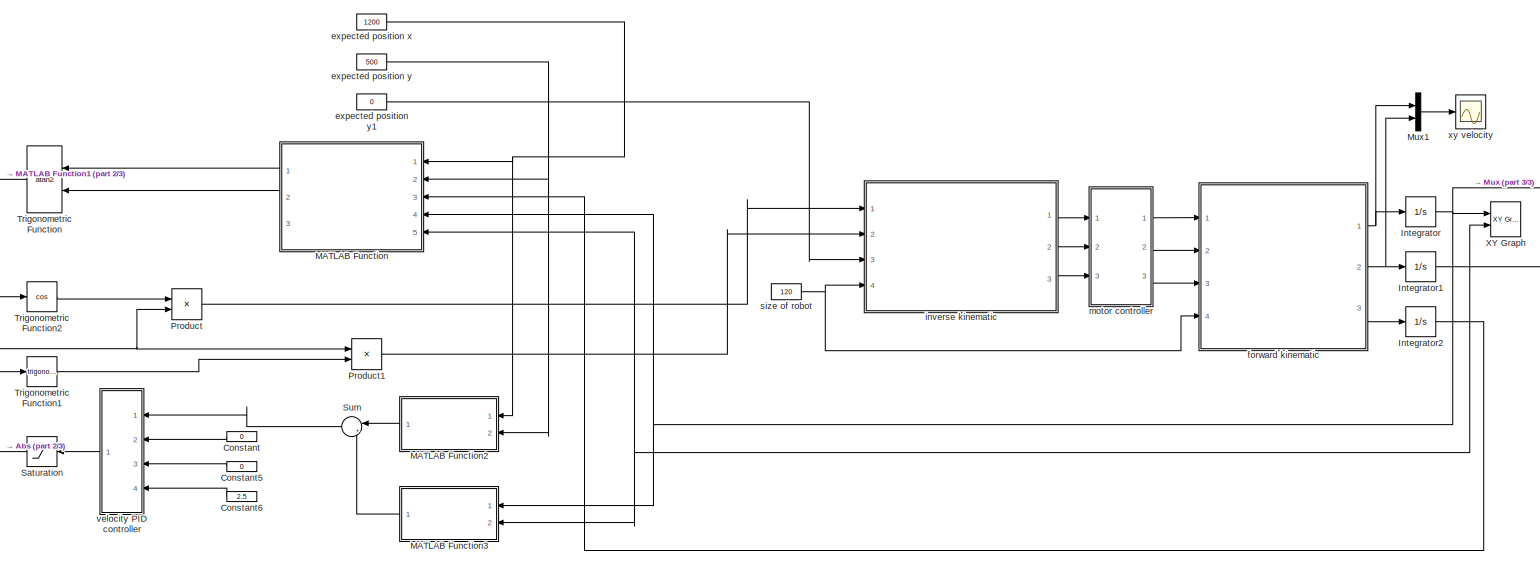
[diagram: root canvas - part 1/3, most of the canvas]
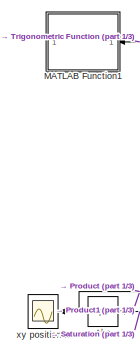
[diagram: root canvas - part 2/3, middle left region]
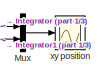
[diagram: root canvas - part 3/3, middle right region]
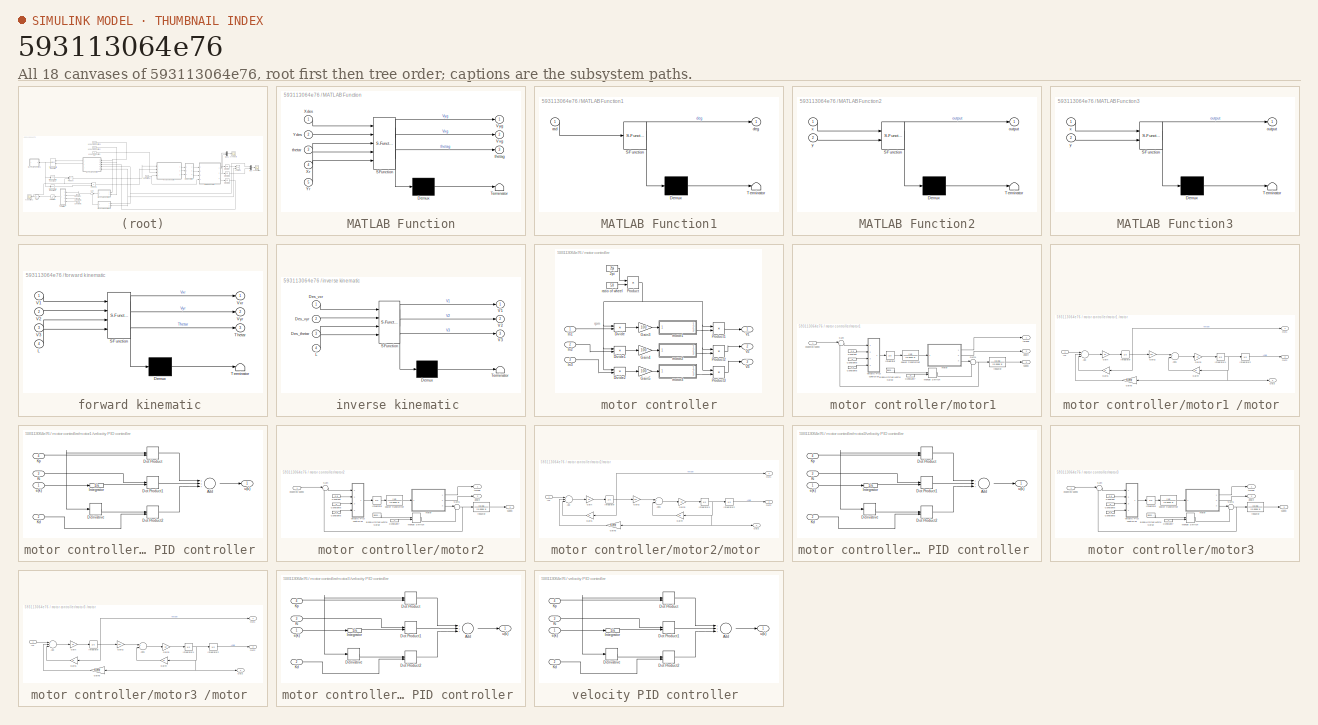
[diagram: thumbnail index - all 18 canvases of the model, root first then tree order]
MODEL slx_593113064e76
KIND model
CONFIG AbsTol = auto
CONFIG FixedStep = auto
CONFIG MaxStep = auto
CONFIG MinStep = auto
CONFIG RelTol = 1e-3
CONFIG SampleTimeConstraint = Unconstrained
CONFIG Solver = VariableStepAuto
CONFIG SolverMode = Auto
CONFIG SolverName = VariableStepAuto
CONFIG StartTime = 0.0
CONFIG StopTime = 10.0
BLOCK [Abs] Abs
  SaturateOnIntegerOverflow = off
BLOCK [Constant] Constant
  Value = 0
BLOCK [Constant] Constant5
  Value = 0
BLOCK [Constant] Constant6
  Value = 2.5
BLOCK [Integrator] Integrator
  Ports = [1, 1]
BLOCK [Integrator] Integrator1
  Ports = [1, 1]
BLOCK [Integrator] Integrator2
  Ports = [1, 1]
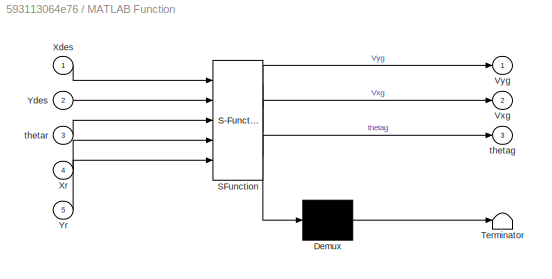
BLOCK [SubSystem] MATLAB Function
  ErrorFcn = Stateflow.Translate.translate
  PermitHierarchicalResolution = ExplicitOnly
  Ports = [5, 3]
  RequestExecContextInheritance = off
  SFBlockType = MATLAB Function
  TreatAsAtomicUnit = on
  Variant = off
BLOCK [Demux] MATLAB Function/ Demux 
  Outputs = 1
  Ports = [1, 1]
BLOCK [S-Function] MATLAB Function/ SFunction 
  EnableBusSupport = on
  FunctionName = sf_sfun
  PortCounts = [5 4]
  Ports = [5, 4]
  SFunctionDeploymentMode = off
  Tag = Stateflow S-Function robot2_position_mode 3
BLOCK [Terminator] MATLAB Function/ Terminator 
BLOCK [Outport] MATLAB Function/Vxg
  IconDisplay = Port number
  Port = 2
BLOCK [Outport] MATLAB Function/Vyg
  IconDisplay = Port number
BLOCK [Inport] MATLAB Function/Xdes
  IconDisplay = Port number
BLOCK [Inport] MATLAB Function/Xr
  IconDisplay = Port number
  Port = 4
BLOCK [Inport] MATLAB Function/Ydes
  IconDisplay = Port number
  Port = 2
BLOCK [Inport] MATLAB Function/Yr
  IconDisplay = Port number
  Port = 5
BLOCK [Outport] MATLAB Function/thetag
  IconDisplay = Port number
  Port = 3
BLOCK [Inport] MATLAB Function/thetar
  IconDisplay = Port number
  Port = 3
BLOCK [SubSystem] MATLAB Function1
  ErrorFcn = Stateflow.Translate.translate
  PermitHierarchicalResolution = ExplicitOnly
  Ports = [1, 1]
  RequestExecContextInheritance = off
  SFBlockType = MATLAB Function
  TreatAsAtomicUnit = on
  Variant = off
BLOCK [Demux] MATLAB Function1/ Demux 
  Outputs = 1
  Ports = [1, 1]
BLOCK [S-Function] MATLAB Function1/ SFunction 
  EnableBusSupport = on
  FunctionName = sf_sfun
  PortCounts = [1 2]
  Ports = [1, 2]
  SFunctionDeploymentMode = off
  Tag = Stateflow S-Function robot2_position_mode 4
BLOCK [Terminator] MATLAB Function1/ Terminator 
BLOCK [Outport] MATLAB Function1/deg
  IconDisplay = Port number
BLOCK [Inport] MATLAB Function1/rad
  IconDisplay = Port number
BLOCK [SubSystem] MATLAB Function2
  ErrorFcn = Stateflow.Translate.translate
  PermitHierarchicalResolution = ExplicitOnly
  Ports = [2, 1]
  RequestExecContextInheritance = off
  SFBlockType = MATLAB Function
  TreatAsAtomicUnit = on
  Variant = off
BLOCK [Demux] MATLAB Function2/ Demux 
  Outputs = 1
  Ports = [1, 1]
BLOCK [S-Function] MATLAB Function2/ SFunction 
  EnableBusSupport = on
  FunctionName = sf_sfun
  PortCounts = [2 2]
  Ports = [2, 2]
  SFunctionDeploymentMode = off
  Tag = Stateflow S-Function robot2_position_mode 5
BLOCK [Terminator] MATLAB Function2/ Terminator 
BLOCK [Outport] MATLAB Function2/output
  IconDisplay = Port number
BLOCK [Inport] MATLAB Function2/x
  IconDisplay = Port number
BLOCK [Inport] MATLAB Function2/y
  IconDisplay = Port number
  Port = 2
BLOCK [SubSystem] MATLAB Function3
  ErrorFcn = Stateflow.Translate.translate
  PermitHierarchicalResolution = ExplicitOnly
  Ports = [2, 1]
  RequestExecContextInheritance = off
  SFBlockType = MATLAB Function
  TreatAsAtomicUnit = on
  Variant = off
BLOCK [Demux] MATLAB Function3/ Demux 
  Outputs = 1
  Ports = [1, 1]
BLOCK [S-Function] MATLAB Function3/ SFunction 
  EnableBusSupport = on
  FunctionName = sf_sfun
  PortCounts = [2 2]
  Ports = [2, 2]
  SFunctionDeploymentMode = off
  Tag = Stateflow S-Function robot2_position_mode 6
BLOCK [Terminator] MATLAB Function3/ Terminator 
BLOCK [Outport] MATLAB Function3/output
  IconDisplay = Port number
BLOCK [Inport] MATLAB Function3/x
  IconDisplay = Port number
BLOCK [Inport] MATLAB Function3/y
  IconDisplay = Port number
  Port = 2
BLOCK [Mux] Mux
  DisplayOption = bar
  Inputs = 2
  Ports = [2, 1]
BLOCK [Mux] Mux1
  DisplayOption = bar
  Inputs = 2
  Ports = [2, 1]
BLOCK [Product] Product
  InputSameDT = off
  OutDataTypeStr = Inherit: Inherit via internal rule
  Ports = [2, 1]
  RndMeth = Floor
  SaturateOnIntegerOverflow = off
BLOCK [Product] Product1
  InputSameDT = off
  OutDataTypeStr = Inherit: Inherit via internal rule
  Ports = [2, 1]
  RndMeth = Floor
  SaturateOnIntegerOverflow = off
BLOCK [Saturate] Saturation
  InputPortMap = u0
  LowerLimit = -400
  Ports = [1, 1]
  UpperLimit = 400
BLOCK [Sum] Sum
  IconShape = round
  InputSameDT = off
  Inputs = |+-
  OutDataTypeStr = Inherit: Inherit via internal rule
  Ports = [2, 1]
  SaturateOnIntegerOverflow = off
BLOCK [Trigonometry] Trigonometric Function
  Operator = atan2
  Ports = [2, 1]
BLOCK [Trigonometry] Trigonometric Function1
  Ports = [1, 1]
BLOCK [Trigonometry] Trigonometric Function2
  Operator = cos
  Ports = [1, 1]
BLOCK [Reference] XY Graph  REF=simulink/Sinks/XY Graph
  Ports = [2]
  SourceBlock = simulink/Sinks/XY Graph
  SourceType = XY scope.
BLOCK [Constant] expected position x
  Value = 1200
BLOCK [Constant] expected position y
  Value = 500
BLOCK [Constant] expected position y1
  Value = 0
BLOCK [SubSystem] forward kinematic 
  ErrorFcn = Stateflow.Translate.translate
  PermitHierarchicalResolution = ExplicitOnly
  Ports = [4, 3]
  RequestExecContextInheritance = off
  SFBlockType = MATLAB Function
  TreatAsAtomicUnit = on
  Variant = off
BLOCK [Demux] forward kinematic / Demux 
  Outputs = 1
  Ports = [1, 1]
BLOCK [S-Function] forward kinematic / SFunction 
  EnableBusSupport = on
  FunctionName = sf_sfun
  PortCounts = [4 4]
  Ports = [4, 4]
  SFunctionDeploymentMode = off
  Tag = Stateflow S-Function robot2_position_mode 2
BLOCK [Terminator] forward kinematic / Terminator 
BLOCK [Inport] forward kinematic /L
  IconDisplay = Port number
  Port = 4
BLOCK [Outport] forward kinematic /Thetar
  IconDisplay = Port number
  Port = 3
BLOCK [Inport] forward kinematic /V1
  IconDisplay = Port number
BLOCK [Inport] forward kinematic /V2
  IconDisplay = Port number
  Port = 2
BLOCK [Inport] forward kinematic /V3
  IconDisplay = Port number
  Port = 3
BLOCK [Outport] forward kinematic /Vxr
  IconDisplay = Port number
BLOCK [Outport] forward kinematic /Vyr
  IconDisplay = Port number
  Port = 2
BLOCK [SubSystem] inverse kinematic 
  ErrorFcn = Stateflow.Translate.translate
  PermitHierarchicalResolution = ExplicitOnly
  Ports = [4, 3]
  RequestExecContextInheritance = off
  SFBlockType = MATLAB Function
  TreatAsAtomicUnit = on
  Variant = off
BLOCK [Demux] inverse kinematic / Demux 
  Outputs = 1
  Ports = [1, 1]
BLOCK [S-Function] inverse kinematic / SFunction 
  EnableBusSupport = on
  FunctionName = sf_sfun
  PortCounts = [4 4]
  Ports = [4, 4]
  SFunctionDeploymentMode = off
  Tag = Stateflow S-Function robot2_position_mode 1
BLOCK [Terminator] inverse kinematic / Terminator 
BLOCK [Inport] inverse kinematic /Des_thetar
  IconDisplay = Port number
  Port = 3
BLOCK [Inport] inverse kinematic /Des_vxr
  IconDisplay = Port number
BLOCK [Inport] inverse kinematic /Des_vyr
  IconDisplay = Port number
  Port = 2
BLOCK [Inport] inverse kinematic /L
  IconDisplay = Port number
  Port = 4
BLOCK [Outport] inverse kinematic /V1
  IconDisplay = Port number
BLOCK [Outport] inverse kinematic /V2
  IconDisplay = Port number
  Port = 2
BLOCK [Outport] inverse kinematic /V3
  IconDisplay = Port number
  Port = 3
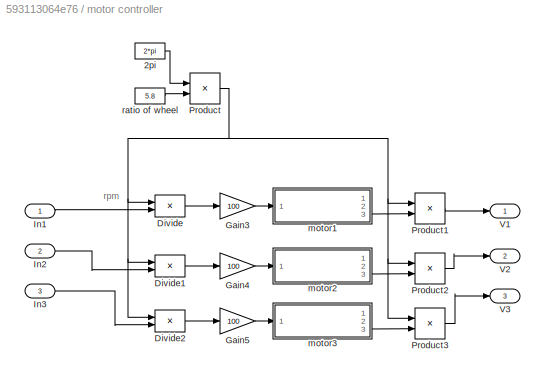
BLOCK [SubSystem] motor controller
  Ports = [3, 3]
  RequestExecContextInheritance = off
  Variant = off
BLOCK [Constant] motor controller/2pi
  Value = 2*pi
BLOCK [Product] motor controller/Divide
  InputSameDT = off
  Inputs = /*
  OutDataTypeStr = Inherit: Inherit via internal rule
  Ports = [2, 1]
  RndMeth = Floor
  SaturateOnIntegerOverflow = off
BLOCK [Product] motor controller/Divide1
  InputSameDT = off
  Inputs = /*
  OutDataTypeStr = Inherit: Inherit via internal rule
  Ports = [2, 1]
  RndMeth = Floor
  SaturateOnIntegerOverflow = off
BLOCK [Product] motor controller/Divide2
  InputSameDT = off
  Inputs = /*
  OutDataTypeStr = Inherit: Inherit via internal rule
  Ports = [2, 1]
  RndMeth = Floor
  SaturateOnIntegerOverflow = off
BLOCK [Gain] motor controller/Gain3
  Gain = 100
  OutDataTypeStr = Inherit: Inherit via internal rule
  ParamDataTypeStr = Inherit: Inherit via internal rule
  SaturateOnIntegerOverflow = off
BLOCK [Gain] motor controller/Gain4
  Gain = 100
  OutDataTypeStr = Inherit: Inherit via internal rule
  ParamDataTypeStr = Inherit: Inherit via internal rule
  SaturateOnIntegerOverflow = off
BLOCK [Gain] motor controller/Gain5
  Gain = 100
  OutDataTypeStr = Inherit: Inherit via internal rule
  ParamDataTypeStr = Inherit: Inherit via internal rule
  SaturateOnIntegerOverflow = off
BLOCK [Inport] motor controller/In1
  IconDisplay = Port number
BLOCK [Inport] motor controller/In2
  IconDisplay = Port number
  Port = 2
BLOCK [Inport] motor controller/In3
  IconDisplay = Port number
  Port = 3
BLOCK [Product] motor controller/Product
  InputSameDT = off
  OutDataTypeStr = Inherit: Inherit via internal rule
  Ports = [2, 1]
  RndMeth = Floor
  SaturateOnIntegerOverflow = off
BLOCK [Product] motor controller/Product1
  InputSameDT = off
  OutDataTypeStr = Inherit: Inherit via internal rule
  Ports = [2, 1]
  RndMeth = Floor
  SaturateOnIntegerOverflow = off
BLOCK [Product] motor controller/Product2
  InputSameDT = off
  OutDataTypeStr = Inherit: Inherit via internal rule
  Ports = [2, 1]
  RndMeth = Floor
  SaturateOnIntegerOverflow = off
BLOCK [Product] motor controller/Product3
  InputSameDT = off
  OutDataTypeStr = Inherit: Inherit via internal rule
  Ports = [2, 1]
  RndMeth = Floor
  SaturateOnIntegerOverflow = off
BLOCK [Outport] motor controller/V1
  IconDisplay = Port number
BLOCK [Outport] motor controller/V2
  IconDisplay = Port number
  Port = 2
BLOCK [Outport] motor controller/V3
  IconDisplay = Port number
  Port = 3
BLOCK [SubSystem] motor controller/motor1 
  Ports = [1, 3]
  RequestExecContextInheritance = off
  Variant = off
BLOCK [Reference] motor controller/motor1 /Band-Limited White Noise  REF=simulink/Sources/Band-Limited
White Noise
  Ports = [0, 1]
  SourceBlock = simulink/Sources/Band-Limited\nWhite Noise
  SourceType = Band-Limited White Noise.
BLOCK [Constant] motor controller/motor1 /Constant
  Value = 0.8
BLOCK [Constant] motor controller/motor1 /Constant5
  Value = 0
BLOCK [Constant] motor controller/motor1 /Constant6
  Value = 4.5
BLOCK [Constant] motor controller/motor1 /Constant7
  Value = 0
BLOCK [Integrator] motor controller/motor1 /Integrator
  Ports = [1, 1]
BLOCK [ManualSwitch] motor controller/motor1 /Manual Switch
  CurrentSetting = 0
BLOCK [Sum] motor controller/motor1 /Sum
  IconShape = round
  InputSameDT = off
  Inputs = |+-
  OutDataTypeStr = Inherit: Inherit via internal rule
  Ports = [2, 1]
  SaturateOnIntegerOverflow = off
BLOCK [Sum] motor controller/motor1 /Sum1
  IconShape = round
  InputSameDT = off
  Inputs = |++
  OutDataTypeStr = Inherit: Inherit via internal rule
  Ports = [2, 1]
  SaturateOnIntegerOverflow = off
BLOCK [Outport] motor controller/motor1 /angle 
  IconDisplay = Port number
  Port = 2
BLOCK [Inport] motor controller/motor1 /expected speed 
  IconDisplay = Port number
BLOCK [SubSystem] motor controller/motor1 /motor 
  Ports = [1, 3]
  RequestExecContextInheritance = off
  Variant = off
BLOCK [Sum] motor controller/motor1 /motor /Add
  InputSameDT = off
  Inputs = +--
  OutDataTypeStr = Inherit: Inherit via internal rule
  Ports = [3, 1]
  SaturateOnIntegerOverflow = off
BLOCK [Sum] motor controller/motor1 /motor /Add1
  InputSameDT = off
  Inputs = +-
  OutDataTypeStr = Inherit: Inherit via internal rule
  Ports = [2, 1]
  SaturateOnIntegerOverflow = off
BLOCK [Gain] motor controller/motor1 /motor /Gain
  Gain = 1/L
  OutDataTypeStr = Inherit: Inherit via internal rule
  ParamDataTypeStr = Inherit: Inherit via internal rule
  SaturateOnIntegerOverflow = off
BLOCK [Gain] motor controller/motor1 /motor /Gain1
  Gain = R
  OutDataTypeStr = Inherit: Inherit via internal rule
  ParamDataTypeStr = Inherit: Inherit via internal rule
  SaturateOnIntegerOverflow = off
BLOCK [Gain] motor controller/motor1 /motor /Gain2
  Gain = Km
  OutDataTypeStr = Inherit: Inherit via internal rule
  ParamDataTypeStr = Inherit: Inherit via internal rule
  SaturateOnIntegerOverflow = off
BLOCK [Gain] motor controller/motor1 /motor /Gain3
  Gain = 1/J
  OutDataTypeStr = Inherit: Inherit via internal rule
  ParamDataTypeStr = Inherit: Inherit via internal rule
  SaturateOnIntegerOverflow = off
BLOCK [Gain] motor controller/motor1 /motor /Gain4
  Gain = Kf
  OutDataTypeStr = Inherit: Inherit via internal rule
  ParamDataTypeStr = Inherit: Inherit via internal rule
  SaturateOnIntegerOverflow = off
BLOCK [Gain] motor controller/motor1 /motor /Gain5
  Gain = Kemf
  OutDataTypeStr = Inherit: Inherit via internal rule
  ParamDataTypeStr = Inherit: Inherit via internal rule
  SaturateOnIntegerOverflow = off
BLOCK [Inport] motor controller/motor1 /motor /In1
  IconDisplay = Port number
BLOCK [Integrator] motor controller/motor1 /motor /Integrator
  Ports = [1, 1]
BLOCK [Integrator] motor controller/motor1 /motor /Integrator1
  Ports = [1, 1]
BLOCK [Integrator] motor controller/motor1 /motor /Integrator2
  Ports = [1, 1]
BLOCK [Outport] motor controller/motor1 /motor /Out1
  IconDisplay = Port number
BLOCK [Outport] motor controller/motor1 /motor /Out2
  IconDisplay = Port number
  Port = 2
BLOCK [Outport] motor controller/motor1 /motor /Out3
  IconDisplay = Port number
  Port = 3
BLOCK [TransferFcn] motor controller/motor1 /power transformer
  Denominator = [0.0015 1]
  Numerator = [12]
BLOCK [TransferFcn] motor controller/motor1 /reductor
  Denominator = [0.0008 1]
  Numerator = [0.01]
BLOCK [Outport] motor controller/motor1 /speed 
  IconDisplay = Port number
  Port = 3
BLOCK [Outport] motor controller/motor1 /torque
  IconDisplay = Port number
BLOCK [SubSystem] motor controller/motor1 /velocity PID controller 
  Ports = [4, 1]
  RequestExecContextInheritance = off
  Variant = off
BLOCK [Sum] motor controller/motor1 /velocity PID controller /Add
  InputSameDT = off
  Inputs = +++
  OutDataTypeStr = Inherit: Inherit via internal rule
  Ports = [3, 1]
  SaturateOnIntegerOverflow = off
BLOCK [Derivative] motor controller/motor1 /velocity PID controller /Derivative
BLOCK [DotProduct] motor controller/motor1 /velocity PID controller /Dot Product
  OutDataTypeStr = Inherit: Inherit via internal rule
BLOCK [DotProduct] motor controller/motor1 /velocity PID controller /Dot Product1
  OutDataTypeStr = Inherit: Inherit via internal rule
BLOCK [DotProduct] motor controller/motor1 /velocity PID controller /Dot Product2
  OutDataTypeStr = Inherit: Inherit via internal rule
BLOCK [Integrator] motor controller/motor1 /velocity PID controller /Integrator
  Ports = [1, 1]
BLOCK [Inport] motor controller/motor1 /velocity PID controller /Kd 
  IconDisplay = Port number
  Port = 2
BLOCK [Inport] motor controller/motor1 /velocity PID controller /Ki 
  IconDisplay = Port number
  Port = 3
BLOCK [Inport] motor controller/motor1 /velocity PID controller /Kp 
  IconDisplay = Port number
  Port = 4
BLOCK [Inport] motor controller/motor1 /velocity PID controller /e(k)
  IconDisplay = Port number
BLOCK [Outport] motor controller/motor1 /velocity PID controller /u(k)
  IconDisplay = Port number
BLOCK [SubSystem] motor controller/motor2
  Ports = [1, 3]
  RequestExecContextInheritance = off
  Variant = off
BLOCK [Reference] motor controller/motor2/Band-Limited White Noise  REF=simulink/Sources/Band-Limited
White Noise
  Ports = [0, 1]
  SourceBlock = simulink/Sources/Band-Limited\nWhite Noise
  SourceType = Band-Limited White Noise.
BLOCK [Constant] motor controller/motor2/Constant
  Value = 0.8
BLOCK [Constant] motor controller/motor2/Constant5
  Value = 0
BLOCK [Constant] motor controller/motor2/Constant6
  Value = 4.5
BLOCK [Constant] motor controller/motor2/Constant7
  Value = 0
BLOCK [Integrator] motor controller/motor2/Integrator
  Ports = [1, 1]
BLOCK [ManualSwitch] motor controller/motor2/Manual Switch
  CurrentSetting = 0
BLOCK [Sum] motor controller/motor2/Sum
  IconShape = round
  InputSameDT = off
  Inputs = |+-
  OutDataTypeStr = Inherit: Inherit via internal rule
  Ports = [2, 1]
  SaturateOnIntegerOverflow = off
BLOCK [Sum] motor controller/motor2/Sum1
  IconShape = round
  InputSameDT = off
  Inputs = |++
  OutDataTypeStr = Inherit: Inherit via internal rule
  Ports = [2, 1]
  SaturateOnIntegerOverflow = off
BLOCK [Outport] motor controller/motor2/angle 
  IconDisplay = Port number
  Port = 2
BLOCK [Inport] motor controller/motor2/expected speed 
  IconDisplay = Port number
BLOCK [SubSystem] motor controller/motor2/motor 
  Ports = [1, 3]
  RequestExecContextInheritance = off
  Variant = off
BLOCK [Sum] motor controller/motor2/motor /Add
  InputSameDT = off
  Inputs = +--
  OutDataTypeStr = Inherit: Inherit via internal rule
  Ports = [3, 1]
  SaturateOnIntegerOverflow = off
BLOCK [Sum] motor controller/motor2/motor /Add1
  InputSameDT = off
  Inputs = +-
  OutDataTypeStr = Inherit: Inherit via internal rule
  Ports = [2, 1]
  SaturateOnIntegerOverflow = off
BLOCK [Gain] motor controller/motor2/motor /Gain
  Gain = 1/L
  OutDataTypeStr = Inherit: Inherit via internal rule
  ParamDataTypeStr = Inherit: Inherit via internal rule
  SaturateOnIntegerOverflow = off
BLOCK [Gain] motor controller/motor2/motor /Gain1
  Gain = R
  OutDataTypeStr = Inherit: Inherit via internal rule
  ParamDataTypeStr = Inherit: Inherit via internal rule
  SaturateOnIntegerOverflow = off
BLOCK [Gain] motor controller/motor2/motor /Gain2
  Gain = Km
  OutDataTypeStr = Inherit: Inherit via internal rule
  ParamDataTypeStr = Inherit: Inherit via internal rule
  SaturateOnIntegerOverflow = off
BLOCK [Gain] motor controller/motor2/motor /Gain3
  Gain = 1/J
  OutDataTypeStr = Inherit: Inherit via internal rule
  ParamDataTypeStr = Inherit: Inherit via internal rule
  SaturateOnIntegerOverflow = off
BLOCK [Gain] motor controller/motor2/motor /Gain4
  Gain = Kf
  OutDataTypeStr = Inherit: Inherit via internal rule
  ParamDataTypeStr = Inherit: Inherit via internal rule
  SaturateOnIntegerOverflow = off
BLOCK [Gain] motor controller/motor2/motor /Gain5
  Gain = Kemf
  OutDataTypeStr = Inherit: Inherit via internal rule
  ParamDataTypeStr = Inherit: Inherit via internal rule
  SaturateOnIntegerOverflow = off
BLOCK [Inport] motor controller/motor2/motor /In1
  IconDisplay = Port number
BLOCK [Integrator] motor controller/motor2/motor /Integrator
  Ports = [1, 1]
BLOCK [Integrator] motor controller/motor2/motor /Integrator1
  Ports = [1, 1]
BLOCK [Integrator] motor controller/motor2/motor /Integrator2
  Ports = [1, 1]
BLOCK [Outport] motor controller/motor2/motor /Out1
  IconDisplay = Port number
BLOCK [Outport] motor controller/motor2/motor /Out2
  IconDisplay = Port number
  Port = 2
BLOCK [Outport] motor controller/motor2/motor /Out3
  IconDisplay = Port number
  Port = 3
BLOCK [TransferFcn] motor controller/motor2/power transformer
  Denominator = [0.0015 1]
  Numerator = [12]
BLOCK [TransferFcn] motor controller/motor2/reductor
  Denominator = [0.0008 1]
  Numerator = [0.01]
BLOCK [Outport] motor controller/motor2/speed 
  IconDisplay = Port number
  Port = 3
BLOCK [Outport] motor controller/motor2/torque
  IconDisplay = Port number
BLOCK [SubSystem] motor controller/motor2/velocity PID controller 
  Ports = [4, 1]
  RequestExecContextInheritance = off
  Variant = off
BLOCK [Sum] motor controller/motor2/velocity PID controller /Add
  InputSameDT = off
  Inputs = +++
  OutDataTypeStr = Inherit: Inherit via internal rule
  Ports = [3, 1]
  SaturateOnIntegerOverflow = off
BLOCK [Derivative] motor controller/motor2/velocity PID controller /Derivative
BLOCK [DotProduct] motor controller/motor2/velocity PID controller /Dot Product
  OutDataTypeStr = Inherit: Inherit via internal rule
BLOCK [DotProduct] motor controller/motor2/velocity PID controller /Dot Product1
  OutDataTypeStr = Inherit: Inherit via internal rule
BLOCK [DotProduct] motor controller/motor2/velocity PID controller /Dot Product2
  OutDataTypeStr = Inherit: Inherit via internal rule
BLOCK [Integrator] motor controller/motor2/velocity PID controller /Integrator
  Ports = [1, 1]
BLOCK [Inport] motor controller/motor2/velocity PID controller /Kd 
  IconDisplay = Port number
  Port = 2
BLOCK [Inport] motor controller/motor2/velocity PID controller /Ki 
  IconDisplay = Port number
  Port = 3
BLOCK [Inport] motor controller/motor2/velocity PID controller /Kp 
  IconDisplay = Port number
  Port = 4
BLOCK [Inport] motor controller/motor2/velocity PID controller /e(k)
  IconDisplay = Port number
BLOCK [Outport] motor controller/motor2/velocity PID controller /u(k)
  IconDisplay = Port number
BLOCK [SubSystem] motor controller/motor3 
  Ports = [1, 3]
  RequestExecContextInheritance = off
  Variant = off
BLOCK [Reference] motor controller/motor3 /Band-Limited White Noise  REF=simulink/Sources/Band-Limited
White Noise
  Ports = [0, 1]
  SourceBlock = simulink/Sources/Band-Limited\nWhite Noise
  SourceType = Band-Limited White Noise.
BLOCK [Constant] motor controller/motor3 /Constant
  Value = 0.8
BLOCK [Constant] motor controller/motor3 /Constant5
  Value = 0
BLOCK [Constant] motor controller/motor3 /Constant6
  Value = 4.5
BLOCK [Constant] motor controller/motor3 /Constant7
  Value = 0
BLOCK [Integrator] motor controller/motor3 /Integrator
  Ports = [1, 1]
BLOCK [ManualSwitch] motor controller/motor3 /Manual Switch
  CurrentSetting = 0
BLOCK [Sum] motor controller/motor3 /Sum
  IconShape = round
  InputSameDT = off
  Inputs = |+-
  OutDataTypeStr = Inherit: Inherit via internal rule
  Ports = [2, 1]
  SaturateOnIntegerOverflow = off
BLOCK [Sum] motor controller/motor3 /Sum1
  IconShape = round
  InputSameDT = off
  Inputs = |++
  OutDataTypeStr = Inherit: Inherit via internal rule
  Ports = [2, 1]
  SaturateOnIntegerOverflow = off
BLOCK [Outport] motor controller/motor3 /angle 
  IconDisplay = Port number
  Port = 2
BLOCK [Inport] motor controller/motor3 /expected speed 
  IconDisplay = Port number
BLOCK [SubSystem] motor controller/motor3 /motor 
  Ports = [1, 3]
  RequestExecContextInheritance = off
  Variant = off
BLOCK [Sum] motor controller/motor3 /motor /Add
  InputSameDT = off
  Inputs = +--
  OutDataTypeStr = Inherit: Inherit via internal rule
  Ports = [3, 1]
  SaturateOnIntegerOverflow = off
BLOCK [Sum] motor controller/motor3 /motor /Add1
  InputSameDT = off
  Inputs = +-
  OutDataTypeStr = Inherit: Inherit via internal rule
  Ports = [2, 1]
  SaturateOnIntegerOverflow = off
BLOCK [Gain] motor controller/motor3 /motor /Gain
  Gain = 1/L
  OutDataTypeStr = Inherit: Inherit via internal rule
  ParamDataTypeStr = Inherit: Inherit via internal rule
  SaturateOnIntegerOverflow = off
BLOCK [Gain] motor controller/motor3 /motor /Gain1
  Gain = R
  OutDataTypeStr = Inherit: Inherit via internal rule
  ParamDataTypeStr = Inherit: Inherit via internal rule
  SaturateOnIntegerOverflow = off
BLOCK [Gain] motor controller/motor3 /motor /Gain2
  Gain = Km
  OutDataTypeStr = Inherit: Inherit via internal rule
  ParamDataTypeStr = Inherit: Inherit via internal rule
  SaturateOnIntegerOverflow = off
BLOCK [Gain] motor controller/motor3 /motor /Gain3
  Gain = 1/J
  OutDataTypeStr = Inherit: Inherit via internal rule
  ParamDataTypeStr = Inherit: Inherit via internal rule
  SaturateOnIntegerOverflow = off
BLOCK [Gain] motor controller/motor3 /motor /Gain4
  Gain = Kf
  OutDataTypeStr = Inherit: Inherit via internal rule
  ParamDataTypeStr = Inherit: Inherit via internal rule
  SaturateOnIntegerOverflow = off
BLOCK [Gain] motor controller/motor3 /motor /Gain5
  Gain = Kemf
  OutDataTypeStr = Inherit: Inherit via internal rule
  ParamDataTypeStr = Inherit: Inherit via internal rule
  SaturateOnIntegerOverflow = off
BLOCK [Inport] motor controller/motor3 /motor /In1
  IconDisplay = Port number
BLOCK [Integrator] motor controller/motor3 /motor /Integrator
  Ports = [1, 1]
BLOCK [Integrator] motor controller/motor3 /motor /Integrator1
  Ports = [1, 1]
BLOCK [Integrator] motor controller/motor3 /motor /Integrator2
  Ports = [1, 1]
BLOCK [Outport] motor controller/motor3 /motor /Out1
  IconDisplay = Port number
BLOCK [Outport] motor controller/motor3 /motor /Out2
  IconDisplay = Port number
  Port = 2
BLOCK [Outport] motor controller/motor3 /motor /Out3
  IconDisplay = Port number
  Port = 3
BLOCK [TransferFcn] motor controller/motor3 /power transformer
  Denominator = [0.0015 1]
  Numerator = [12]
BLOCK [TransferFcn] motor controller/motor3 /reductor
  Denominator = [0.0008 1]
  Numerator = [0.01]
BLOCK [Outport] motor controller/motor3 /speed 
  IconDisplay = Port number
  Port = 3
BLOCK [Outport] motor controller/motor3 /torque
  IconDisplay = Port number
BLOCK [SubSystem] motor controller/motor3 /velocity PID controller 
  Ports = [4, 1]
  RequestExecContextInheritance = off
  Variant = off
BLOCK [Sum] motor controller/motor3 /velocity PID controller /Add
  InputSameDT = off
  Inputs = +++
  OutDataTypeStr = Inherit: Inherit via internal rule
  Ports = [3, 1]
  SaturateOnIntegerOverflow = off
BLOCK [Derivative] motor controller/motor3 /velocity PID controller /Derivative
BLOCK [DotProduct] motor controller/motor3 /velocity PID controller /Dot Product
  OutDataTypeStr = Inherit: Inherit via internal rule
BLOCK [DotProduct] motor controller/motor3 /velocity PID controller /Dot Product1
  OutDataTypeStr = Inherit: Inherit via internal rule
BLOCK [DotProduct] motor controller/motor3 /velocity PID controller /Dot Product2
  OutDataTypeStr = Inherit: Inherit via internal rule
BLOCK [Integrator] motor controller/motor3 /velocity PID controller /Integrator
  Ports = [1, 1]
BLOCK [Inport] motor controller/motor3 /velocity PID controller /Kd 
  IconDisplay = Port number
  Port = 2
BLOCK [Inport] motor controller/motor3 /velocity PID controller /Ki 
  IconDisplay = Port number
  Port = 3
BLOCK [Inport] motor controller/motor3 /velocity PID controller /Kp 
  IconDisplay = Port number
  Port = 4
BLOCK [Inport] motor controller/motor3 /velocity PID controller /e(k)
  IconDisplay = Port number
BLOCK [Outport] motor controller/motor3 /velocity PID controller /u(k)
  IconDisplay = Port number
BLOCK [Constant] motor controller/ratio of wheel
  Value = 5.8
BLOCK [Constant] size of robot 
  Value = 120
BLOCK [SubSystem] velocity PID controller 
  Ports = [4, 1]
  RequestExecContextInheritance = off
  Variant = off
BLOCK [Sum] velocity PID controller /Add
  InputSameDT = off
  Inputs = +++
  OutDataTypeStr = Inherit: Inherit via internal rule
  Ports = [3, 1]
  SaturateOnIntegerOverflow = off
BLOCK [Derivative] velocity PID controller /Derivative
BLOCK [DotProduct] velocity PID controller /Dot Product
  OutDataTypeStr = Inherit: Inherit via internal rule
BLOCK [DotProduct] velocity PID controller /Dot Product1
  OutDataTypeStr = Inherit: Inherit via internal rule
BLOCK [DotProduct] velocity PID controller /Dot Product2
  OutDataTypeStr = Inherit: Inherit via internal rule
BLOCK [Integrator] velocity PID controller /Integrator
  Ports = [1, 1]
BLOCK [Inport] velocity PID controller /Kd 
  IconDisplay = Port number
  Port = 2
BLOCK [Inport] velocity PID controller /Ki 
  IconDisplay = Port number
  Port = 3
BLOCK [Inport] velocity PID controller /Kp 
  IconDisplay = Port number
  Port = 4
BLOCK [Inport] velocity PID controller /e(k)
  IconDisplay = Port number
BLOCK [Outport] velocity PID controller /u(k)
  IconDisplay = Port number
BLOCK [Scope] xy position 
  Ports = [1]
  ScopeSpecificationString = Simulink.scopes.TimeScopeBlockCfg('CurrentConfiguration', extmgr.ConfigurationSet(extmgr.Configuration('Core','General UI',true),extmgr.Configuration('Core','Source UI',true),extmgr.Configuration('Sources','WiredSimulink',true,'DataLoggingVariableName','ScopeData1'),extmgr.Configuration('Visuals','Time Domain',true,'SerializedDisplays',{struct('MinYLimReal','-150.00001','MaxYLimReal','1350.00005',...<+1479ch>
BLOCK [Scope] xy position 2
  Ports = [1]
  ScopeSpecificationString = Simulink.scopes.TimeScopeBlockCfg('CurrentConfiguration', extmgr.ConfigurationSet(extmgr.Configuration('Core','General UI',true),extmgr.Configuration('Core','Source UI',true),extmgr.Configuration('Sources','WiredSimulink',true,'DataLoggingVariableName','ScopeData3'),extmgr.Configuration('Visuals','Time Domain',true,'SerializedDisplays',{struct('MinYLimReal','-49.89128','MaxYLimReal','449.98792','Y...<+1496ch>
BLOCK [Scope] xy velocity 
  Ports = [1]
  ScopeSpecificationString = Simulink.scopes.TimeScopeBlockCfg('CurrentConfiguration', extmgr.ConfigurationSet(extmgr.Configuration('Core','General UI',true),extmgr.Configuration('Core','Source UI',true),extmgr.Configuration('Sources','WiredSimulink',true),extmgr.Configuration('Visuals','Time Domain',true,'SerializedDisplays',{struct('MinYLimReal','-48.44815','MaxYLimReal','434.94853','YLabelReal','','MinYLimMag','0.00000','M...<+1459ch>
ANNOTATION motor controller: rpm
NET Abs:1 -> Product1:1, Product:2, xy position 2:1
LINE Constant5:1 -> velocity PID controller :3
LINE Constant6:1 -> velocity PID controller :4
LINE Constant:1 -> velocity PID controller :2
NET Integrator1:1 -> MATLAB Function3:2, MATLAB Function:5, Mux:2, XY Graph:2
LINE Integrator2:1 -> MATLAB Function:3
NET Integrator:1 -> MATLAB Function3:1, MATLAB Function:4, Mux:1, XY Graph:1
LINE MATLAB Function2:1 -> Sum:1
LINE MATLAB Function3:1 -> Sum:2
LINE MATLAB Function:1 -> Trigonometric Function:1
LINE MATLAB Function:2 -> Trigonometric Function:2
LINE Mux1:1 -> xy velocity :1
LINE Mux:1 -> xy position :1
LINE Product1:1 -> inverse kinematic :2
LINE Product:1 -> inverse kinematic :1
LINE Saturation:1 -> Abs:1
LINE Sum:1 -> velocity PID controller :1
LINE Trigonometric Function1:1 -> Product1:2
LINE Trigonometric Function2:1 -> Product:1
NET Trigonometric Function:1 -> MATLAB Function1:1, Trigonometric Function1:1, Trigonometric Function2:1
NET expected position x:1 -> MATLAB Function2:1, MATLAB Function:1
LINE expected position y1:1 -> inverse kinematic :3
NET expected position y:1 -> MATLAB Function2:2, MATLAB Function:2
NET forward kinematic :1 -> Integrator:1, Mux1:1
NET forward kinematic :2 -> Integrator1:1, Mux1:2
LINE forward kinematic :3 -> Integrator2:1
LINE inverse kinematic :1 -> motor controller:1
LINE inverse kinematic :2 -> motor controller:2
LINE inverse kinematic :3 -> motor controller:3
LINE motor controller/2pi:1 -> motor controller/Product:1
LINE motor controller/Divide1:1 -> motor controller/Gain4:1
LINE motor controller/Divide2:1 -> motor controller/Gain5:1
LINE motor controller/Divide:1 -> motor controller/Gain3:1
LINE motor controller/Gain3:1 -> motor controller/motor1 :1
LINE motor controller/Gain4:1 -> motor controller/motor2:1
LINE motor controller/Gain5:1 -> motor controller/motor3 :1
LINE motor controller/In1:1 -> motor controller/Divide:2
LINE motor controller/In2:1 -> motor controller/Divide1:2
LINE motor controller/In3:1 -> motor controller/Divide2:2
LINE motor controller/Product1:1 -> motor controller/V1:1
LINE motor controller/Product2:1 -> motor controller/V2:1
LINE motor controller/Product3:1 -> motor controller/V3:1
NET motor controller/Product:1 -> motor controller/Divide1:1, motor controller/Divide2:1, motor controller/Divide:1, motor controller/Product1:1, motor controller/Product2:1, motor controller/Product3:1
LINE motor controller/motor1 /Band-Limited White Noise:1 -> motor controller/motor1 /Manual Switch:1
LINE motor controller/motor1 /Constant5:1 -> motor controller/motor1 /velocity PID controller :3
LINE motor controller/motor1 /Constant6:1 -> motor controller/motor1 /velocity PID controller :4
LINE motor controller/motor1 /Constant7:1 -> motor controller/motor1 /Manual Switch:2
LINE motor controller/motor1 /Constant:1 -> motor controller/motor1 /velocity PID controller :2
LINE motor controller/motor1 /Integrator:1 -> motor controller/motor1 /power transformer:1
LINE motor controller/motor1 /Manual Switch:1 -> motor controller/motor1 /Sum1:2
NET motor controller/motor1 /Sum1:1 -> motor controller/motor1 /Sum:2, motor controller/motor1 /reductor:1
LINE motor controller/motor1 /Sum:1 -> motor controller/motor1 /velocity PID controller :1
LINE motor controller/motor1 /expected speed :1 -> motor controller/motor1 /Sum:1
LINE motor controller/motor1 /motor /Add1:1 -> motor controller/motor1 /motor /Gain3:1
LINE motor controller/motor1 /motor /Add:1 -> motor controller/motor1 /motor /Gain:1
LINE motor controller/motor1 /motor /Gain1:1 -> motor controller/motor1 /motor /Add:3
LINE motor controller/motor1 /motor /Gain2:1 -> motor controller/motor1 /motor /Add1:1
LINE motor controller/motor1 /motor /Gain3:1 -> motor controller/motor1 /motor /Integrator1:1
LINE motor controller/motor1 /motor /Gain4:1 -> motor controller/motor1 /motor /Add1:2
LINE motor controller/motor1 /motor /Gain5:1 -> motor controller/motor1 /motor /Add:2
LINE motor controller/motor1 /motor /Gain:1 -> motor controller/motor1 /motor /Integrator:1
LINE motor controller/motor1 /motor /In1:1 -> motor controller/motor1 /motor /Add:1
NET motor controller/motor1 /motor /Integrator1:1 -> motor controller/motor1 /motor /Gain4:1, motor controller/motor1 /motor /Gain5:1, motor controller/motor1 /motor /Integrator2:1, motor controller/motor1 /motor /Out3:1
LINE motor controller/motor1 /motor /Integrator2:1 -> motor controller/motor1 /motor /Out2:1
NET motor controller/motor1 /motor /Integrator:1 -> motor controller/motor1 /motor /Gain1:1, motor controller/motor1 /motor /Gain2:1, motor controller/motor1 /motor /Out1:1
LINE motor controller/motor1 /motor :1 -> motor controller/motor1 /torque:1
LINE motor controller/motor1 /motor :2 -> motor controller/motor1 /angle :1
LINE motor controller/motor1 /motor :3 -> motor controller/motor1 /Sum1:1
LINE motor controller/motor1 /power transformer:1 -> motor controller/motor1 /motor :1
LINE motor controller/motor1 /reductor:1 -> motor controller/motor1 /speed :1
LINE motor controller/motor1 /velocity PID controller /Add:1 -> motor controller/motor1 /velocity PID controller /u(k):1
LINE motor controller/motor1 /velocity PID controller /Derivative:1 -> motor controller/motor1 /velocity PID controller /Dot Product2:1
LINE motor controller/motor1 /velocity PID controller /Dot Product1:1 -> motor controller/motor1 /velocity PID controller /Add:2
LINE motor controller/motor1 /velocity PID controller /Dot Product2:1 -> motor controller/motor1 /velocity PID controller /Add:3
LINE motor controller/motor1 /velocity PID controller /Dot Product:1 -> motor controller/motor1 /velocity PID controller /Add:1
LINE motor controller/motor1 /velocity PID controller /Integrator:1 -> motor controller/motor1 /velocity PID controller /Dot Product1:2
LINE motor controller/motor1 /velocity PID controller /Kd :1 -> motor controller/motor1 /velocity PID controller /Dot Product2:2
LINE motor controller/motor1 /velocity PID controller /Ki :1 -> motor controller/motor1 /velocity PID controller /Dot Product1:1
LINE motor controller/motor1 /velocity PID controller /Kp :1 -> motor controller/motor1 /velocity PID controller /Dot Product:2
NET motor controller/motor1 /velocity PID controller /e(k):1 -> motor controller/motor1 /velocity PID controller /Derivative:1, motor controller/motor1 /velocity PID controller /Dot Product:1, motor controller/motor1 /velocity PID controller /Integrator:1
LINE motor controller/motor1 /velocity PID controller :1 -> motor controller/motor1 /Integrator:1
LINE motor controller/motor1 :3 -> motor controller/Product1:2
LINE motor controller/motor2/Band-Limited White Noise:1 -> motor controller/motor2/Manual Switch:1
LINE motor controller/motor2/Constant5:1 -> motor controller/motor2/velocity PID controller :3
LINE motor controller/motor2/Constant6:1 -> motor controller/motor2/velocity PID controller :4
LINE motor controller/motor2/Constant7:1 -> motor controller/motor2/Manual Switch:2
LINE motor controller/motor2/Constant:1 -> motor controller/motor2/velocity PID controller :2
LINE motor controller/motor2/Integrator:1 -> motor controller/motor2/power transformer:1
LINE motor controller/motor2/Manual Switch:1 -> motor controller/motor2/Sum1:2
NET motor controller/motor2/Sum1:1 -> motor controller/motor2/Sum:2, motor controller/motor2/reductor:1
LINE motor controller/motor2/Sum:1 -> motor controller/motor2/velocity PID controller :1
LINE motor controller/motor2/expected speed :1 -> motor controller/motor2/Sum:1
LINE motor controller/motor2/motor /Add1:1 -> motor controller/motor2/motor /Gain3:1
LINE motor controller/motor2/motor /Add:1 -> motor controller/motor2/motor /Gain:1
LINE motor controller/motor2/motor /Gain1:1 -> motor controller/motor2/motor /Add:3
LINE motor controller/motor2/motor /Gain2:1 -> motor controller/motor2/motor /Add1:1
LINE motor controller/motor2/motor /Gain3:1 -> motor controller/motor2/motor /Integrator1:1
LINE motor controller/motor2/motor /Gain4:1 -> motor controller/motor2/motor /Add1:2
LINE motor controller/motor2/motor /Gain5:1 -> motor controller/motor2/motor /Add:2
LINE motor controller/motor2/motor /Gain:1 -> motor controller/motor2/motor /Integrator:1
LINE motor controller/motor2/motor /In1:1 -> motor controller/motor2/motor /Add:1
NET motor controller/motor2/motor /Integrator1:1 -> motor controller/motor2/motor /Gain4:1, motor controller/motor2/motor /Gain5:1, motor controller/motor2/motor /Integrator2:1, motor controller/motor2/motor /Out3:1
LINE motor controller/motor2/motor /Integrator2:1 -> motor controller/motor2/motor /Out2:1
NET motor controller/motor2/motor /Integrator:1 -> motor controller/motor2/motor /Gain1:1, motor controller/motor2/motor /Gain2:1, motor controller/motor2/motor /Out1:1
LINE motor controller/motor2/motor :1 -> motor controller/motor2/torque:1
LINE motor controller/motor2/motor :2 -> motor controller/motor2/angle :1
LINE motor controller/motor2/motor :3 -> motor controller/motor2/Sum1:1
LINE motor controller/motor2/power transformer:1 -> motor controller/motor2/motor :1
LINE motor controller/motor2/reductor:1 -> motor controller/motor2/speed :1
LINE motor controller/motor2/velocity PID controller /Add:1 -> motor controller/motor2/velocity PID controller /u(k):1
LINE motor controller/motor2/velocity PID controller /Derivative:1 -> motor controller/motor2/velocity PID controller /Dot Product2:1
LINE motor controller/motor2/velocity PID controller /Dot Product1:1 -> motor controller/motor2/velocity PID controller /Add:2
LINE motor controller/motor2/velocity PID controller /Dot Product2:1 -> motor controller/motor2/velocity PID controller /Add:3
LINE motor controller/motor2/velocity PID controller /Dot Product:1 -> motor controller/motor2/velocity PID controller /Add:1
LINE motor controller/motor2/velocity PID controller /Integrator:1 -> motor controller/motor2/velocity PID controller /Dot Product1:2
LINE motor controller/motor2/velocity PID controller /Kd :1 -> motor controller/motor2/velocity PID controller /Dot Product2:2
LINE motor controller/motor2/velocity PID controller /Ki :1 -> motor controller/motor2/velocity PID controller /Dot Product1:1
LINE motor controller/motor2/velocity PID controller /Kp :1 -> motor controller/motor2/velocity PID controller /Dot Product:2
NET motor controller/motor2/velocity PID controller /e(k):1 -> motor controller/motor2/velocity PID controller /Derivative:1, motor controller/motor2/velocity PID controller /Dot Product:1, motor controller/motor2/velocity PID controller /Integrator:1
LINE motor controller/motor2/velocity PID controller :1 -> motor controller/motor2/Integrator:1
LINE motor controller/motor2:3 -> motor controller/Product2:2
LINE motor controller/motor3 /Band-Limited White Noise:1 -> motor controller/motor3 /Manual Switch:1
LINE motor controller/motor3 /Constant5:1 -> motor controller/motor3 /velocity PID controller :3
LINE motor controller/motor3 /Constant6:1 -> motor controller/motor3 /velocity PID controller :4
LINE motor controller/motor3 /Constant7:1 -> motor controller/motor3 /Manual Switch:2
LINE motor controller/motor3 /Constant:1 -> motor controller/motor3 /velocity PID controller :2
LINE motor controller/motor3 /Integrator:1 -> motor controller/motor3 /power transformer:1
LINE motor controller/motor3 /Manual Switch:1 -> motor controller/motor3 /Sum1:2
NET motor controller/motor3 /Sum1:1 -> motor controller/motor3 /Sum:2, motor controller/motor3 /reductor:1
LINE motor controller/motor3 /Sum:1 -> motor controller/motor3 /velocity PID controller :1
LINE motor controller/motor3 /expected speed :1 -> motor controller/motor3 /Sum:1
LINE motor controller/motor3 /motor /Add1:1 -> motor controller/motor3 /motor /Gain3:1
LINE motor controller/motor3 /motor /Add:1 -> motor controller/motor3 /motor /Gain:1
LINE motor controller/motor3 /motor /Gain1:1 -> motor controller/motor3 /motor /Add:3
LINE motor controller/motor3 /motor /Gain2:1 -> motor controller/motor3 /motor /Add1:1
LINE motor controller/motor3 /motor /Gain3:1 -> motor controller/motor3 /motor /Integrator1:1
LINE motor controller/motor3 /motor /Gain4:1 -> motor controller/motor3 /motor /Add1:2
LINE motor controller/motor3 /motor /Gain5:1 -> motor controller/motor3 /motor /Add:2
LINE motor controller/motor3 /motor /Gain:1 -> motor controller/motor3 /motor /Integrator:1
LINE motor controller/motor3 /motor /In1:1 -> motor controller/motor3 /motor /Add:1
NET motor controller/motor3 /motor /Integrator1:1 -> motor controller/motor3 /motor /Gain4:1, motor controller/motor3 /motor /Gain5:1, motor controller/motor3 /motor /Integrator2:1, motor controller/motor3 /motor /Out3:1
LINE motor controller/motor3 /motor /Integrator2:1 -> motor controller/motor3 /motor /Out2:1
NET motor controller/motor3 /motor /Integrator:1 -> motor controller/motor3 /motor /Gain1:1, motor controller/motor3 /motor /Gain2:1, motor controller/motor3 /motor /Out1:1
LINE motor controller/motor3 /motor :1 -> motor controller/motor3 /torque:1
LINE motor controller/motor3 /motor :2 -> motor controller/motor3 /angle :1
LINE motor controller/motor3 /motor :3 -> motor controller/motor3 /Sum1:1
LINE motor controller/motor3 /power transformer:1 -> motor controller/motor3 /motor :1
LINE motor controller/motor3 /reductor:1 -> motor controller/motor3 /speed :1
LINE motor controller/motor3 /velocity PID controller /Add:1 -> motor controller/motor3 /velocity PID controller /u(k):1
LINE motor controller/motor3 /velocity PID controller /Derivative:1 -> motor controller/motor3 /velocity PID controller /Dot Product2:1
LINE motor controller/motor3 /velocity PID controller /Dot Product1:1 -> motor controller/motor3 /velocity PID controller /Add:2
LINE motor controller/motor3 /velocity PID controller /Dot Product2:1 -> motor controller/motor3 /velocity PID controller /Add:3
LINE motor controller/motor3 /velocity PID controller /Dot Product:1 -> motor controller/motor3 /velocity PID controller /Add:1
LINE motor controller/motor3 /velocity PID controller /Integrator:1 -> motor controller/motor3 /velocity PID controller /Dot Product1:2
LINE motor controller/motor3 /velocity PID controller /Kd :1 -> motor controller/motor3 /velocity PID controller /Dot Product2:2
LINE motor controller/motor3 /velocity PID controller /Ki :1 -> motor controller/motor3 /velocity PID controller /Dot Product1:1
LINE motor controller/motor3 /velocity PID controller /Kp :1 -> motor controller/motor3 /velocity PID controller /Dot Product:2
NET motor controller/motor3 /velocity PID controller /e(k):1 -> motor controller/motor3 /velocity PID controller /Derivative:1, motor controller/motor3 /velocity PID controller /Dot Product:1, motor controller/motor3 /velocity PID controller /Integrator:1
LINE motor controller/motor3 /velocity PID controller :1 -> motor controller/motor3 /Integrator:1
LINE motor controller/motor3 :3 -> motor controller/Product3:2
LINE motor controller/ratio of wheel:1 -> motor controller/Product:2
LINE motor controller:1 -> forward kinematic :1
LINE motor controller:2 -> forward kinematic :2
LINE motor controller:3 -> forward kinematic :3
NET size of robot :1 -> forward kinematic :4, inverse kinematic :4
LINE velocity PID controller /Add:1 -> velocity PID controller /u(k):1
LINE velocity PID controller /Derivative:1 -> velocity PID controller /Dot Product2:1
LINE velocity PID controller /Dot Product1:1 -> velocity PID controller /Add:2
LINE velocity PID controller /Dot Product2:1 -> velocity PID controller /Add:3
LINE velocity PID controller /Dot Product:1 -> velocity PID controller /Add:1
LINE velocity PID controller /Integrator:1 -> velocity PID controller /Dot Product1:2
LINE velocity PID controller /Kd :1 -> velocity PID controller /Dot Product2:2
LINE velocity PID controller /Ki :1 -> velocity PID controller /Dot Product1:1
LINE velocity PID controller /Kp :1 -> velocity PID controller /Dot Product:2
NET velocity PID controller /e(k):1 -> velocity PID controller /Derivative:1, velocity PID controller /Dot Product:1, velocity PID controller /Integrator:1
LINE velocity PID controller :1 -> Saturation:1
note: NET lines group one-source signal fan-out (src -> all destinations, sorted); 1:1 wires keep LINE
CHART inverse kinematic
 states=1 transitions=1
  STATE_LABEL 'eML_blk_kernel()'
  STATE_LABEL "SCRIPT:\nfunction [V1,V2,V3] = inverse_kinematic(Des_vxr,Des_vyr,Des_thetar,L)\n\ntransfer_matrix = [cos(1/6*pi) cos(5/6*pi) cos(3/2*pi);\n                   sin(1/6*pi) sin(5/6*pi) sin(3/2*pi);\n                   1/(3*L)   1/(3*L)  1/(3*L) ];\n\ninverse_model = inv(transfer_matrix);\n\n%result = [Des_vxr,Des_vyr,Des_thetar]'/transfer_matrix;\nresult = inverse_model*[Des_vxr,Des_vyr,Des_thetar]';\n\nV1 = res...<+40ch>"
CHART forward kinematic

 states=1 transitions=1
  STATE_LABEL 'eML_blk_kernel()'
  STATE_LABEL "SCRIPT:\nfunction [Vxr,Vyr,Thetar] = forward_kinematic(V1,V2,V3,L)\n\n%   L is distance between center and middle of wheel\n\n\n\ntransfer_matrix = [cos(1/6*pi) cos(5/6*pi) cos(3/2*pi);\n                   sin(1/6*pi) sin(5/6*pi) sin(3/2*pi);\n                   1/(3*L)   1/(3*L)  1/(3*L) ];\nresult = transfer_matrix*[V1,V2,V3]';\n\nVxr = result(1);\nVyr = result(2);\nThetar = result(3);"
CHART MATLAB Function states=1 transitions=1
  STATE_LABEL 'eML_blk_kernel()'
  STATE_LABEL 'SCRIPT:\nfunction [Vyg,Vxg,thetag] = T(Xdes,Ydes,thetar,Xr,Yr)\n%#codegen\n\nrotation_matrix = [cos(thetar) sin(thetar) -Xr\n                  -sin(thetar) cos(thetar) -Yr\n                   0           0           1];\nout = rotation_matrix*[Xdes;Ydes;1];\nVxg = out(1);\nVyg = out(2);\nthetag = out(3);'
CHART MATLAB Function1 states=1 transitions=1
  STATE_LABEL 'eML_blk_kernel()'
  STATE_LABEL 'SCRIPT:\nfunction deg  = rad2deg(rad)\n%#codegen\n\ndeg = rad2deg(rad);'
CHART MATLAB Function2 states=1 transitions=1
  STATE_LABEL 'eML_blk_kernel()'
  STATE_LABEL 'SCRIPT:\nfunction output  = sum_of_power(x,y)\n%#codegen\n\noutput = sqrt(x^2+y^2);'
CHART MATLAB Function3 states=1 transitions=1
  STATE_LABEL 'eML_blk_kernel()'
  STATE_LABEL 'SCRIPT:\nfunction output  = sum_of_power(x,y)\n%#codegen\n\noutput = sqrt(x^2+y^2);'
